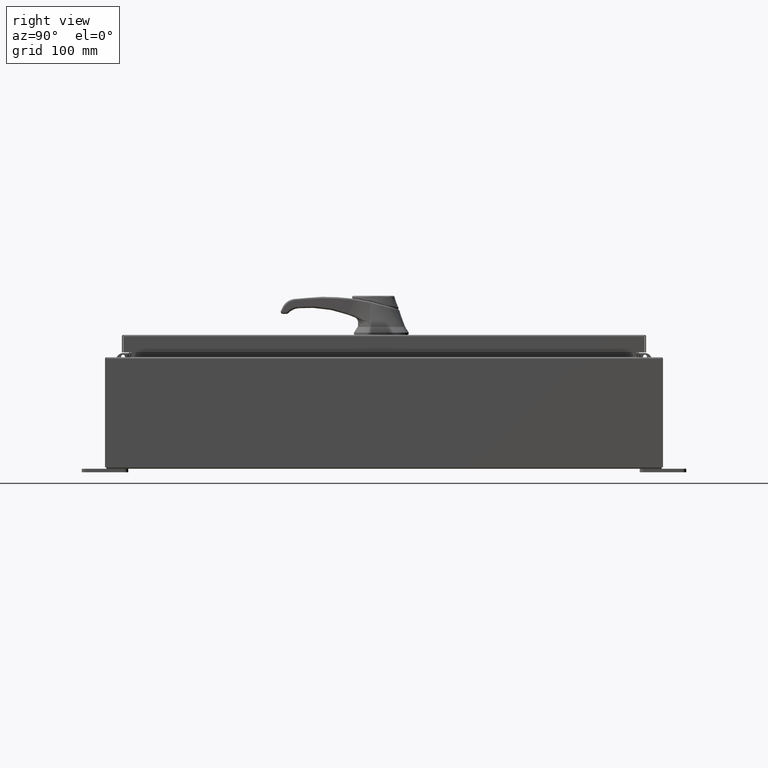
[diagram: clean part render]
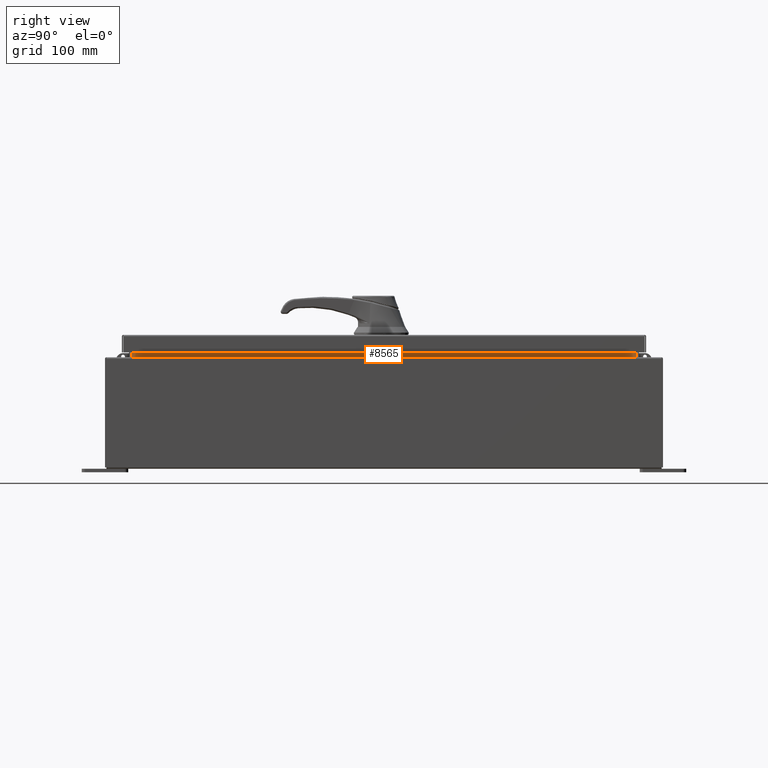
[diagram: same view with one face highlighted and labeled with its STEP entity id]
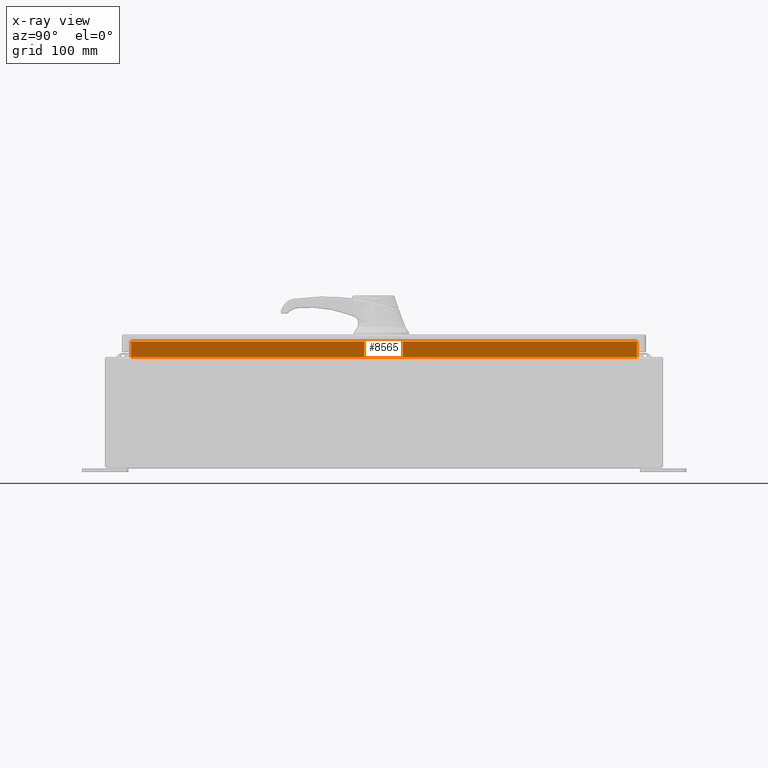
[diagram: x-ray of the same camera — body ghosted, the highlighted face saturated]
A machine part, right view. The second image highlights one B-rep face of the part: STEP entity #8565.
The next image is the same camera in x-ray: the body ghosted, the highlighted face saturated — about 0% of this face is hidden behind the body in this view.
In plain terms, the highlighted planar face has unit normal (1, 0, -0).
Its self-contained STEP definition (entity closure, byte-faithful):
#316 = LINE ( 'NONE', #94458, #94752 ) ;
#1211 = DIRECTION ( 'NONE',  ( -3.542869979895294000E-015, 0.0000000000000000000, -1.000000000000000000 ) ) ;
#4470 = LINE ( 'NONE', #78363, #47276 ) ;
#8565 = ADVANCED_FACE ( 'NONE', ( #20141 ), #38295, .T. ) ;
#9220 = ORIENTED_EDGE ( 'NONE', *, *, #65557, .F. ) ;
#9580 = VECTOR ( 'NONE', #82031, 39.37007874015748100 ) ;
#10703 = CARTESIAN_POINT ( 'NONE',  ( 8.699700000000023100, -13.59374999999999800, 6.762900000000009900 ) ) ;
#20141 = FACE_OUTER_BOUND ( 'NONE', #72184, .T. ) ;
#21168 = VERTEX_POINT ( 'NONE', #33396 ) ;
#23527 = DIRECTION ( 'NONE',  ( 3.542869979895302300E-015, -0.0000000000000000000, 1.000000000000000000 ) ) ;
#30925 = LINE ( 'NONE', #118152, #9580 ) ;
#32645 = DIRECTION ( 'NONE',  ( 0.0000000000000000000, 1.000000000000000000, 0.0000000000000000000 ) ) ;
#33396 = CARTESIAN_POINT ( 'NONE',  ( 8.699700000000021300, 13.59375000000000700, 6.762900000000009900 ) ) ;
#38295 = PLANE ( 'NONE',  #97714 ) ;
#38343 = CARTESIAN_POINT ( 'NONE',  ( 8.699700000000019500, 13.59375000000000900, 5.938300000000011500 ) ) ;
#40404 = DIRECTION ( 'NONE',  ( 8.038541222736220000E-017, -1.000000000000000000, 1.205781183410432900E-016 ) ) ;
#46991 = LINE ( 'NONE', #87511, #117305 ) ;
#47276 = VECTOR ( 'NONE', #23527, 39.37007874015748100 ) ;
#49399 = VERTEX_POINT ( 'NONE', #10703 ) ;
#50709 = ORIENTED_EDGE ( 'NONE', *, *, #109257, .F. ) ;
#53112 = CARTESIAN_POINT ( 'NONE',  ( 8.699699999999998200, 0.0000000000000000000, -3.082190596409509000E-014 ) ) ;
#58488 = DIRECTION ( 'NONE',  ( 1.000000000000000000, 0.0000000000000000000, -3.542869979895294000E-015 ) ) ;
#64531 = ORIENTED_EDGE ( 'NONE', *, *, #114234, .F. ) ;
#65557 = EDGE_CURVE ( 'NONE', #100852, #109119, #316, .T. ) ;
#67153 = CARTESIAN_POINT ( 'NONE',  ( 8.699700000000019500, -13.59375000000000000, 5.938300000000011500 ) ) ;
#72184 = EDGE_LOOP ( 'NONE', ( #64531, #98584, #50709, #9220 ) ) ;
#78363 = CARTESIAN_POINT ( 'NONE',  ( 8.699700000000023100, -13.59374999999999800, 6.850600000000010700 ) ) ;
#82031 = DIRECTION ( 'NONE',  ( -3.542869979895294000E-015, -0.0000000000000000000, -1.000000000000000000 ) ) ;
#87511 = CARTESIAN_POINT ( 'NONE',  ( 8.699700000000021300, -13.59374999999999800, 6.762900000000009900 ) ) ;
#94458 = CARTESIAN_POINT ( 'NONE',  ( 8.699700000000019500, 13.59375000000000700, 5.938300000000010600 ) ) ;
#94695 = EDGE_CURVE ( 'NONE', #49399, #21168, #46991, .T. ) ;
#94752 = VECTOR ( 'NONE', #40404, 39.37007874015748100 ) ;
#97714 = AXIS2_PLACEMENT_3D ( 'NONE', #53112, #58488, #1211 ) ;
#98584 = ORIENTED_EDGE ( 'NONE', *, *, #94695, .F. ) ;
#100852 = VERTEX_POINT ( 'NONE', #38343 ) ;
#109119 = VERTEX_POINT ( 'NONE', #67153 ) ;
#109257 = EDGE_CURVE ( 'NONE', #109119, #49399, #4470, .T. ) ;
#114234 = EDGE_CURVE ( 'NONE', #21168, #100852, #30925, .T. ) ;
#117305 = VECTOR ( 'NONE', #32645, 39.37007874015748100 ) ;
#118152 = CARTESIAN_POINT ( 'NONE',  ( 8.699700000000019500, 13.59375000000000700, 5.925300000000009800 ) ) ;